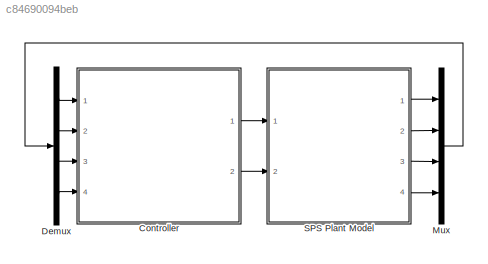
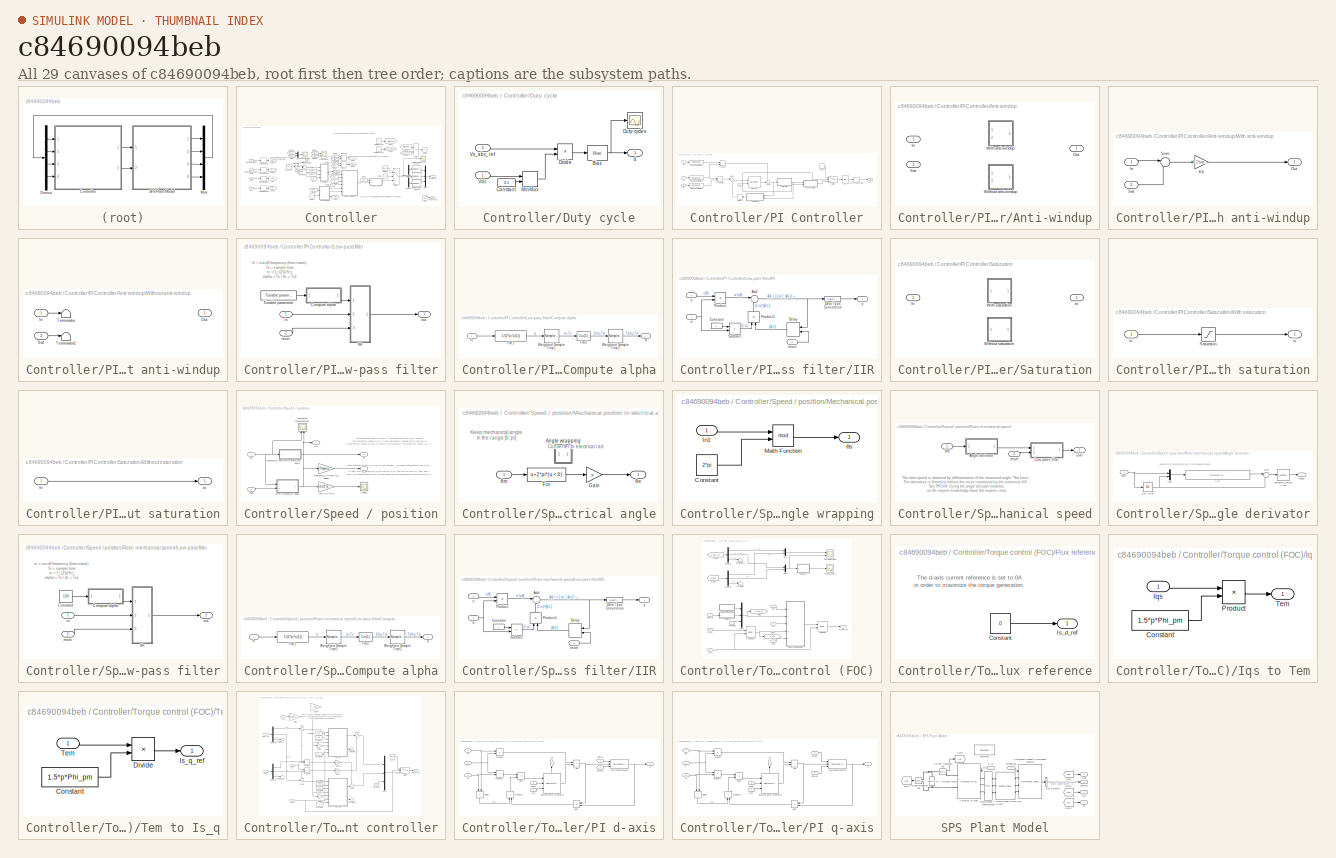
[diagram: thumbnail index - all 29 canvases of the model, root first then tree order]
MODEL slx_c84690094beb
KIND model
CONFIG AbsTol = auto
CONFIG EnableMultiTasking = off
CONFIG FixedStep = ControlPeriod/10
CONFIG InitFcn = Emrax_params;
CONFIG MaxStep = ControlPeriod/10
CONFIG MinStep = auto
CONFIG RelTol = 1e-3
CONFIG SampleTimeConstraint = Unconstrained
CONFIG SolverName = FixedStepDiscrete
CONFIG StartTime = 0.0
CONFIG StopTime = 4
WORKSPACE source: mxarray member
WORKSPACE CTRLPERIOD = 5e-05
WORKSPACE TSAMPLE = 2e-06
WORKSPACE global_CLK_number = 0
WORKSPACE global_INT_number = 1
WORKSPACE global_SVM_instance_id = 0
WORKSPACE global_can_baud_rate = '1000000'
WORKSPACE global_comp_time = 0.2
WORKSPACE global_cycle_delay = 0
WORKSPACE global_ip_addresses: object (value not decoded)
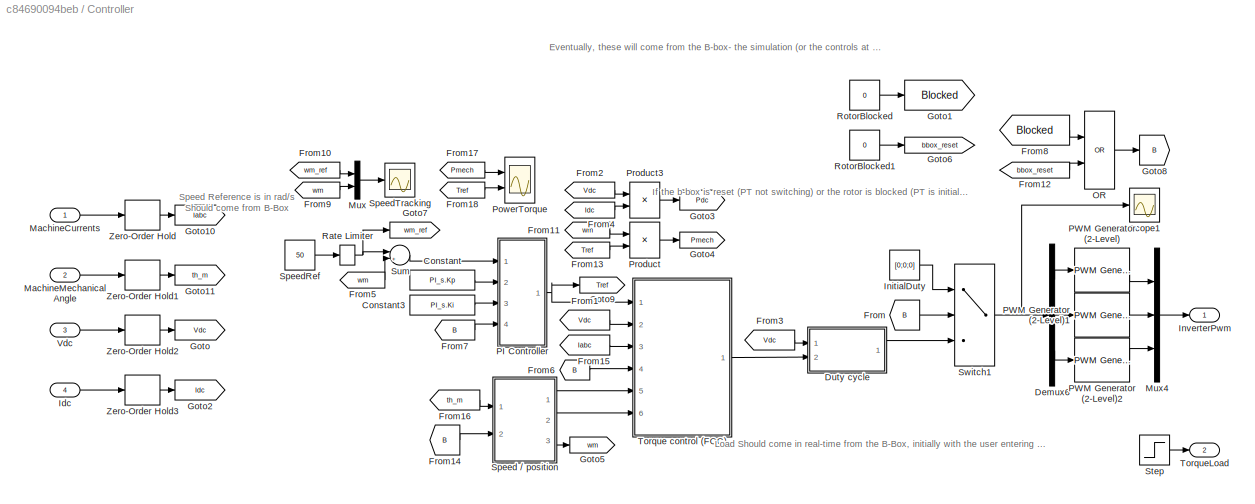
BLOCK [SubSystem] Controller
  Ports = [4, 2]
  RequestExecContextInheritance = off
BLOCK [Constant] Controller/Constant
  SampleTime = ControlPeriod
  Value = PI_s.Kp
BLOCK [Constant] Controller/Constant3
  SampleTime = ControlPeriod
  Value = PI_s.Ki
BLOCK [Demux] Controller/Demux6
  Outputs = 3
  Ports = [1, 3]
BLOCK [SubSystem] Controller/Duty cycle
  Ports = [2, 1]
  RequestExecContextInheritance = off
BLOCK [Bias] Controller/Duty cycle/Bias
  Bias = 0.5
  SaturateOnIntegerOverflow = off
BLOCK [Constant] Controller/Duty cycle/Constant
  OutDataTypeStr = single
  Value = 0.1
BLOCK [Product] Controller/Duty cycle/Divide
  Inputs = */
  Ports = [2, 1]
BLOCK [Scope] Controller/Duty cycle/Duty-cycles
  Floating = off
  NumInputPorts = 1
  Ports = [1]
  ScopeSpecificationString = Simulink.scopes.TimeScopeBlockCfg('CurrentConfiguration', extmgr.ConfigurationSet(extmgr.Configuration('Core','General UI',true),extmgr.Configuration('Core','Source UI',true),extmgr.Configuration('Sources','WiredSimulink',true,'DataLoggingVariableName','ScopeData1'),extmgr.Configuration('Visuals','Time Domain',true,'SerializedDisplays',{struct('MinYLimReal','-0.76547','MaxYLimReal','0.76547','YLab...<+1523ch>
BLOCK [MinMax] Controller/Duty cycle/MinMax
  Function = max
  Inputs = 2
  Ports = [2, 1]
BLOCK [Inport] Controller/Duty cycle/Vdc
BLOCK [Inport] Controller/Duty cycle/Vs_abc_ref
  Port = 2
BLOCK [Outport] Controller/Duty cycle/d
BLOCK [From] Controller/From
  GotoTag = B
BLOCK [From] Controller/From1
  GotoTag = Vdc
BLOCK [From] Controller/From10
  GotoTag = wm_ref
BLOCK [From] Controller/From11
  GotoTag = wm
BLOCK [From] Controller/From12
  GotoTag = bbox_reset
BLOCK [From] Controller/From13
  GotoTag = Tref
BLOCK [From] Controller/From14
  GotoTag = B
BLOCK [From] Controller/From15
  GotoTag = Iabc
BLOCK [From] Controller/From16
  GotoTag = th_m
BLOCK [From] Controller/From17
  GotoTag = Pmech
BLOCK [From] Controller/From18
  GotoTag = Tref
BLOCK [From] Controller/From2
  GotoTag = Vdc
BLOCK [From] Controller/From3
  GotoTag = Vdc
BLOCK [From] Controller/From4
  GotoTag = Idc
BLOCK [From] Controller/From5
  GotoTag = wm
BLOCK [From] Controller/From6
  GotoTag = B
BLOCK [From] Controller/From7
  GotoTag = B
BLOCK [From] Controller/From8
  GotoTag = Blocked
BLOCK [From] Controller/From9
  GotoTag = wm
BLOCK [Goto] Controller/Goto
  GotoTag = Vdc
BLOCK [Goto] Controller/Goto1
  GotoTag = Blocked
BLOCK [Goto] Controller/Goto10
  GotoTag = Iabc
BLOCK [Goto] Controller/Goto11
  GotoTag = th_m
BLOCK [Goto] Controller/Goto2
  GotoTag = Idc
BLOCK [Goto] Controller/Goto3
  GotoTag = Pdc
BLOCK [Goto] Controller/Goto4
  GotoTag = Pmech
BLOCK [Goto] Controller/Goto5
  GotoTag = wm
BLOCK [Goto] Controller/Goto6
  GotoTag = bbox_reset
BLOCK [Goto] Controller/Goto7
  GotoTag = wm_ref
BLOCK [Goto] Controller/Goto8
  GotoTag = B
BLOCK [Goto] Controller/Goto9
  GotoTag = Tref
BLOCK [Inport] Controller/Idc
  Port = 4
BLOCK [Constant] Controller/InitialDuty
  SampleTime = ControlPeriod
  Value = [0;0;0]
BLOCK [Outport] Controller/InverterPwm
BLOCK [Inport] Controller/MachineCurrents
BLOCK [Inport] Controller/MachineMechanicalAngle
  Port = 2
BLOCK [Mux] Controller/Mux
  DisplayOption = bar
  Inputs = 2
  Ports = [2, 1]
BLOCK [Mux] Controller/Mux4
  DisplayOption = bar
  Inputs = 3
  Ports = [3, 1]
BLOCK [Logic] Controller/OR
  AllPortsSameDT = off
  IconShape = distinctive
  Operator = OR
  OutDataTypeStr = boolean
  Ports = [2, 1]
BLOCK [SubSystem] Controller/PI Controller
  Ports = [4, 1]
  RequestExecContextInheritance = off
BLOCK [SubSystem] Controller/PI Controller/Anti-windup
  LabelModeActiveChoice = WITH_ANTI_WINDUP
  Ports = [2, 1]
  RequestExecContextInheritance = off
  Variant = on
  VariantControlMode = label
BLOCK [Inport] Controller/PI Controller/Anti-windup/In
BLOCK [Outport] Controller/PI Controller/Anti-windup/Out
BLOCK [Inport] Controller/PI Controller/Anti-windup/Sat
  Port = 2
BLOCK [SubSystem] Controller/PI Controller/Anti-windup/With anti-windup
  Ports = [2, 1]
  RequestExecContextInheritance = off
  VariantControl = WITH_ANTI_WINDUP
BLOCK [Inport] Controller/PI Controller/Anti-windup/With anti-windup/In
BLOCK [Gain] Controller/PI Controller/Anti-windup/With anti-windup/Kb
  Gain = 0.1*sqrt(PI_s.Kp*PI_s.Ki)
  NameLocation = top
  SaturateOnIntegerOverflow = on
BLOCK [Outport] Controller/PI Controller/Anti-windup/With anti-windup/Out
BLOCK [Inport] Controller/PI Controller/Anti-windup/With anti-windup/Sat
  Port = 2
BLOCK [Sum] Controller/PI Controller/Anti-windup/With anti-windup/Sum
  Inputs = |-+
  Ports = [2, 1]
BLOCK [SubSystem] Controller/PI Controller/Anti-windup/Without anti-windup
  Ports = [2, 1]
  RequestExecContextInheritance = off
  VariantControl = WITHOUT_ANTI_WINDUP
BLOCK [Inport] Controller/PI Controller/Anti-windup/Without anti-windup/In
BLOCK [Outport] Controller/PI Controller/Anti-windup/Without anti-windup/Out
BLOCK [Inport] Controller/PI Controller/Anti-windup/Without anti-windup/Sat
  Port = 2
BLOCK [Terminator] Controller/PI Controller/Anti-windup/Without anti-windup/Terminator
BLOCK [Terminator] Controller/PI Controller/Anti-windup/Without anti-windup/Terminator1
BLOCK [InitialCondition] Controller/PI Controller/IC
  Value = 0
BLOCK [Inport] Controller/PI Controller/In
BLOCK [DiscreteIntegrator] Controller/PI Controller/Integrator
  ExternalReset = level
  ICPrevOutput = DiscIntNeverNeededParam
  ICPrevScaledInput = DiscIntNeverNeededParam
  InitialConditionSetting = Auto
  IntegratorMethod = Integration: Trapezoidal
  Ports = [2, 1]
  SampleTime = SamplingTime
BLOCK [Inport] Controller/PI Controller/Ki
  Port = 3
BLOCK [Inport] Controller/PI Controller/Kp
  Port = 2
BLOCK [SubSystem] Controller/PI Controller/Low-pass filter
  Ports = [2, 1]
  RequestExecContextInheritance = off
BLOCK [SubSystem] Controller/PI Controller/Low-pass filter/Compute alpha
  Ports = [1, 1]
  RequestExecContextInheritance = off
BLOCK [Fcn] Controller/PI Controller/Low-pass filter/Compute alpha/Fcn1
  Expr = 1/(2*pi*u(1))
BLOCK [Fcn] Controller/PI Controller/Low-pass filter/Compute alpha/Fcn2
  Expr = 1/u(1)
BLOCK [SampleTimeMath] Controller/PI Controller/Low-pass filter/Compute alpha/Weighted Sample Time1
BLOCK [SampleTimeMath] Controller/PI Controller/Low-pass filter/Compute alpha/Weighted Sample Time2
  TsampMathOp = *
BLOCK [Inport] Controller/PI Controller/Low-pass filter/Compute alpha/fc
BLOCK [Outport] Controller/PI Controller/Low-pass filter/Compute alpha/α
BLOCK [SubSystem] Controller/PI Controller/Low-pass filter/IIR
  Ports = [3, 1]
  RequestExecContextInheritance = off
BLOCK [Sum] Controller/PI Controller/Low-pass filter/IIR/Add
  AccumDataTypeStr = Inherit: Same as first input
  Inputs = |++
  NameLocation = top
  Ports = [2, 1]
BLOCK [Constant] Controller/PI Controller/Low-pass filter/IIR/Constant
  OutDataTypeStr = Inherit: Inherit via back propagation
BLOCK [DataTypeConversion] Controller/PI Controller/Low-pass filter/IIR/Data Type Conversion
  OutDataTypeStr = single
  RndMeth = Floor
  SaturateOnIntegerOverflow = off
BLOCK [Delay] Controller/PI Controller/Low-pass filter/IIR/Delay
  DelayLength = 1
  ExternalReset = Level hold
  InputPortMap = u0,r5
  NameLocation = top
  Ports = [2, 1]
BLOCK [Product] Controller/PI Controller/Low-pass filter/IIR/Product
  Ports = [2, 1]
BLOCK [Product] Controller/PI Controller/Low-pass filter/IIR/Product1
  NameLocation = right
  Ports = [2, 1]
BLOCK [Sum] Controller/PI Controller/Low-pass filter/IIR/Subtract
  IconShape = rectangular
  Inputs = +-
  Ports = [2, 1]
BLOCK [Inport] Controller/PI Controller/Low-pass filter/IIR/reset
  Port = 3
BLOCK [Inport] Controller/PI Controller/Low-pass filter/IIR/u
  NameLocation = top
  Port = 2
BLOCK [Outport] Controller/PI Controller/Low-pass filter/IIR/y
  NameLocation = top
BLOCK [Inport] Controller/PI Controller/Low-pass filter/IIR/α
  NameLocation = top
BLOCK [Reference] Controller/PI Controller/Low-pass filter/Tunable parameter  REF=BoomBox/Tunable parameter
  Ports = [0, 1]
  SourceBlock = BoomBox/Tunable parameter
  SourceProductName = imperix blockset
  SourceType = Tunable parameter
BLOCK [Inport] Controller/PI Controller/Low-pass filter/in
BLOCK [Outport] Controller/PI Controller/Low-pass filter/out
BLOCK [Inport] Controller/PI Controller/Low-pass filter/reset
  Port = 2
BLOCK [Memory] Controller/PI Controller/Memory
BLOCK [Outport] Controller/PI Controller/Out
BLOCK [Product] Controller/PI Controller/Product
  Ports = [2, 1]
BLOCK [Product] Controller/PI Controller/Product1
  Ports = [2, 1]
BLOCK [SubSystem] Controller/PI Controller/Saturation
  LabelModeActiveChoice = WITH_SATURATION
  Ports = [1, 1]
  RequestExecContextInheritance = off
  Variant = on
  VariantControlMode = label
BLOCK [Inport] Controller/PI Controller/Saturation/In
BLOCK [SubSystem] Controller/PI Controller/Saturation/With saturation
  Ports = [1, 1]
  RequestExecContextInheritance = off
  VariantControl = WITH_SATURATION
BLOCK [Inport] Controller/PI Controller/Saturation/With saturation/In
BLOCK [Saturate] Controller/PI Controller/Saturation/With saturation/Saturation
  LinearizeAsGain = off
  LowerLimit = -100
  UpperLimit = 100
BLOCK [Outport] Controller/PI Controller/Saturation/With saturation/in
BLOCK [SubSystem] Controller/PI Controller/Saturation/Without saturation
  Ports = [1, 1]
  RequestExecContextInheritance = off
  VariantControl = WITHOUT_SATURATION
BLOCK [Inport] Controller/PI Controller/Saturation/Without saturation/In
BLOCK [Outport] Controller/PI Controller/Saturation/Without saturation/in
BLOCK [Outport] Controller/PI Controller/Saturation/in
BLOCK [SignalSpecification] Controller/PI Controller/Signal Specification
  SampleTime = SamplingTime
BLOCK [SignalSpecification] Controller/PI Controller/Signal Specification1
  SampleTime = SamplingTime
BLOCK [SignalSpecification] Controller/PI Controller/Signal Specification2
  SampleTime = SamplingTime
BLOCK [Sum] Controller/PI Controller/Sum4
  Inputs = |++
  Ports = [2, 1]
BLOCK [Sum] Controller/PI Controller/Sum5
  Inputs = ++|
  Ports = [2, 1]
BLOCK [Switch] Controller/PI Controller/Switch
  Criteria = u2 > Threshold
  InputSameDT = off
  SaturateOnIntegerOverflow = off
BLOCK [Constant] Controller/PI Controller/Zero
  OutDataTypeStr = Inherit: Inherit via back propagation
  Value = 0
BLOCK [ZeroOrderHold] Controller/PI Controller/Zero-Order Hold
  SampleTime = CTRLPERIOD
BLOCK [Inport] Controller/PI Controller/rst
  Port = 4
BLOCK [Reference] Controller/PWM Generator (2-Level)  REF=spsPWMGenerator2LevelLib/PWM Generator
(2-Level)
  Ports = [1, 1]
  SourceBlock = spsPWMGenerator2LevelLib/PWM Generator\n(2-Level)
  SourceProductBaseCode = PS
  SourceType = PWM Generator (2-Level)
BLOCK [Reference] Controller/PWM Generator (2-Level)1  REF=spsPWMGenerator2LevelLib/PWM Generator
(2-Level)
  Ports = [1, 1]
  SourceBlock = spsPWMGenerator2LevelLib/PWM Generator\n(2-Level)
  SourceProductBaseCode = PS
  SourceType = PWM Generator (2-Level)
BLOCK [Reference] Controller/PWM Generator (2-Level)2  REF=spsPWMGenerator2LevelLib/PWM Generator
(2-Level)
  Ports = [1, 1]
  SourceBlock = spsPWMGenerator2LevelLib/PWM Generator\n(2-Level)
  SourceProductBaseCode = PS
  SourceType = PWM Generator (2-Level)
BLOCK [Scope] Controller/PowerTorque
  Floating = off
  NumInputPorts = 2
  Ports = [2]
  ScopeSpecificationString = Simulink.scopes.TimeScopeBlockCfg('CurrentConfiguration', extmgr.ConfigurationSet(extmgr.Configuration('Core','General UI',true),extmgr.Configuration('Core','Source UI',true),extmgr.Configuration('Sources','WiredSimulink',true,'DataLoggingVariableName','ScopeData2'),extmgr.Configuration('Visuals','Time Domain',true,'SerializedDisplays',{struct('MinYLimReal','-92.34118','MaxYLimReal','576.14314','Y...<+2194ch>
BLOCK [Product] Controller/Product
  Ports = [2, 1]
BLOCK [Product] Controller/Product3
  Ports = [2, 1]
BLOCK [RateLimiter] Controller/Rate Limiter
  FallingSlewLimit = -25
  LinearizeAsGain = off
  RisingSlewLimit = 100
  SampleTimeMode = inherited
BLOCK [Constant] Controller/RotorBlocked
  SampleTime = ControlPeriod
  Value = 0
BLOCK [Constant] Controller/RotorBlocked1
  SampleTime = ControlPeriod
  Value = 0
BLOCK [Scope] Controller/Scope1
  Floating = off
  NumInputPorts = 1
  Ports = [1]
  ScopeSpecificationString = Simulink.scopes.TimeScopeBlockCfg('CurrentConfiguration', extmgr.ConfigurationSet(extmgr.Configuration('Core','General UI',true),extmgr.Configuration('Core','Source UI',true),extmgr.Configuration('Sources','WiredSimulink',true,'DataLoggingVariableName','ScopeData1'),extmgr.Configuration('Visuals','Time Domain',true,'SerializedDisplays',{struct('MinYLimReal','0.4','MaxYLimReal','0.6','YLabelReal','...<+1521ch>
BLOCK [SubSystem] Controller/Speed // position
  Ports = [2, 3]
  RequestExecContextInheritance = off
BLOCK [Outport] Controller/Speed // position/ ωm
  Port = 3
BLOCK [Outport] Controller/Speed // position/ ωs
BLOCK [Scope] Controller/Speed // position/Mechanical measurements
  Floating = off
  NameLocation = right
  NumInputPorts = 2
  Ports = [2]
  ScopeSpecificationString = Simulink.scopes.TimeScopeBlockCfg('CurrentConfiguration', extmgr.ConfigurationSet(extmgr.Configuration('Core','General UI',true),extmgr.Configuration('Core','Source UI',true),extmgr.Configuration('Sources','WiredSimulink',true,'DataLoggingVariableName','ScopeData2'),extmgr.Configuration('Visuals','Time Domain',true,'SerializedDisplays',{struct('MinYLimReal','-3.92656','MaxYLimReal','3.92395','YLab...<+2062ch>
BLOCK [SubSystem] Controller/Speed // position/Mechanical position to electrical angle
  Ports = [1, 1]
  RequestExecContextInheritance = off
BLOCK [SubSystem] Controller/Speed // position/Mechanical position to electrical angle/Angle wrapping
  Commented = on
  NameLocation = top
  Ports = [1, 1]
  RequestExecContextInheritance = off
  ShowPortLabels = none
BLOCK [Constant] Controller/Speed // position/Mechanical position to electrical angle/Angle wrapping/Constant
  OutDataTypeStr = single
  Value = 2*pi
BLOCK [Inport] Controller/Speed // position/Mechanical position to electrical angle/Angle wrapping/In1
BLOCK [Math] Controller/Speed // position/Mechanical position to electrical angle/Angle wrapping/Math Function
  Operator = mod
  Ports = [2, 1]
  SignedPower = on
BLOCK [Outport] Controller/Speed // position/Mechanical position to electrical angle/Angle wrapping/θs
BLOCK [Fcn] Controller/Speed // position/Mechanical position to electrical angle/Fcn
  Expr = u+2*pi*(u < 0)
BLOCK [Gain] Controller/Speed // position/Mechanical position to electrical angle/Gain
  Gain = p
BLOCK [Outport] Controller/Speed // position/Mechanical position to electrical angle/θe
BLOCK [Inport] Controller/Speed // position/Mechanical position to electrical angle/θm
BLOCK [Gain] Controller/Speed // position/Mechanical to electrical speed
  Gain = Pmsm.p
BLOCK [SubSystem] Controller/Speed // position/Rotor mechanical speed
  Ports = [2, 1]
  RequestExecContextInheritance = off
BLOCK [SubSystem] Controller/Speed // position/Rotor mechanical speed/Angle derivator
  Ports = [1, 1]
  RequestExecContextInheritance = off
BLOCK [Fcn] Controller/Speed // position/Rotor mechanical speed/Angle derivator/Fcn
  Expr = u(1)+2*pi*((u(1)-u(2))<-pi)-2*pi*((u(1)-u(2)>pi))
BLOCK [Mux] Controller/Speed // position/Rotor mechanical speed/Angle derivator/Mux
  DisplayOption = bar
  Inputs = 2
  Ports = [2, 1]
BLOCK [Sum] Controller/Speed // position/Rotor mechanical speed/Angle derivator/Sum
  Inputs = |+-
  Ports = [2, 1]
BLOCK [UnitDelay] Controller/Speed // position/Rotor mechanical speed/Angle derivator/Unit Delay
  HasFrameUpgradeWarning = on
  SampleTime = CTRLPERIOD(1)
BLOCK [SampleTimeMath] Controller/Speed // position/Rotor mechanical speed/Angle derivator/Weighted Sample Time
  TsampMathOp = /
BLOCK [Inport] Controller/Speed // position/Rotor mechanical speed/Angle derivator/angle
BLOCK [Outport] Controller/Speed // position/Rotor mechanical speed/Angle derivator/speed
BLOCK [SubSystem] Controller/Speed // position/Rotor mechanical speed/Low-pass filter
  Ports = [2, 1]
  RequestExecContextInheritance = off
BLOCK [SubSystem] Controller/Speed // position/Rotor mechanical speed/Low-pass filter/Compute alpha
  Ports = [1, 1]
  RequestExecContextInheritance = off
BLOCK [Fcn] Controller/Speed // position/Rotor mechanical speed/Low-pass filter/Compute alpha/Fcn1
  Expr = 1/(2*pi*u(1))
BLOCK [Fcn] Controller/Speed // position/Rotor mechanical speed/Low-pass filter/Compute alpha/Fcn2
  Expr = 1/u(1)
BLOCK [SampleTimeMath] Controller/Speed // position/Rotor mechanical speed/Low-pass filter/Compute alpha/Weighted Sample Time1
BLOCK [SampleTimeMath] Controller/Speed // position/Rotor mechanical speed/Low-pass filter/Compute alpha/Weighted Sample Time2
  TsampMathOp = *
BLOCK [Inport] Controller/Speed // position/Rotor mechanical speed/Low-pass filter/Compute alpha/fc
BLOCK [Outport] Controller/Speed // position/Rotor mechanical speed/Low-pass filter/Compute alpha/α
BLOCK [Constant] Controller/Speed // position/Rotor mechanical speed/Low-pass filter/Constant
  Value = 100
BLOCK [SubSystem] Controller/Speed // position/Rotor mechanical speed/Low-pass filter/IIR
  Ports = [3, 1]
  RequestExecContextInheritance = off
BLOCK [Sum] Controller/Speed // position/Rotor mechanical speed/Low-pass filter/IIR/Add
  AccumDataTypeStr = Inherit: Same as first input
  Inputs = |++
  NameLocation = top
  Ports = [2, 1]
BLOCK [Constant] Controller/Speed // position/Rotor mechanical speed/Low-pass filter/IIR/Constant
  OutDataTypeStr = Inherit: Inherit via back propagation
BLOCK [DataTypeConversion] Controller/Speed // position/Rotor mechanical speed/Low-pass filter/IIR/Data Type Conversion
  Commented = through
  OutDataTypeStr = single
  RndMeth = Floor
  SaturateOnIntegerOverflow = off
BLOCK [Delay] Controller/Speed // position/Rotor mechanical speed/Low-pass filter/IIR/Delay
  DelayLength = 1
  ExternalReset = Level hold
  InputPortMap = u0,r5
  NameLocation = top
  Ports = [2, 1]
BLOCK [Product] Controller/Speed // position/Rotor mechanical speed/Low-pass filter/IIR/Product
  Ports = [2, 1]
BLOCK [Product] Controller/Speed // position/Rotor mechanical speed/Low-pass filter/IIR/Product1
  NameLocation = right
  Ports = [2, 1]
BLOCK [Sum] Controller/Speed // position/Rotor mechanical speed/Low-pass filter/IIR/Subtract
  IconShape = rectangular
  Inputs = +-
  Ports = [2, 1]
BLOCK [Inport] Controller/Speed // position/Rotor mechanical speed/Low-pass filter/IIR/reset
  Port = 3
BLOCK [Inport] Controller/Speed // position/Rotor mechanical speed/Low-pass filter/IIR/u
  NameLocation = top
  Port = 2
BLOCK [Outport] Controller/Speed // position/Rotor mechanical speed/Low-pass filter/IIR/y
  NameLocation = top
BLOCK [Inport] Controller/Speed // position/Rotor mechanical speed/Low-pass filter/IIR/α
  NameLocation = top
BLOCK [Inport] Controller/Speed // position/Rotor mechanical speed/Low-pass filter/in
BLOCK [Outport] Controller/Speed // position/Rotor mechanical speed/Low-pass filter/out
BLOCK [Inport] Controller/Speed // position/Rotor mechanical speed/Low-pass filter/reset
  Port = 2
BLOCK [Inport] Controller/Speed // position/Rotor mechanical speed/reset
  Port = 2
BLOCK [Inport] Controller/Speed // position/Rotor mechanical speed/θm
BLOCK [Outport] Controller/Speed // position/Rotor mechanical speed/ωm
BLOCK [Scope] Controller/Speed // position/Speed
  Floating = off
  NumInputPorts = 1
  Ports = [1]
  ScopeSpecificationString = Simulink.scopes.TimeScopeBlockCfg('CurrentConfiguration', extmgr.ConfigurationSet(extmgr.Configuration('Core','General UI',true),extmgr.Configuration('Core','Source UI',true),extmgr.Configuration('Sources','WiredSimulink',true,'DataLoggingVariableName','ScopeData3'),extmgr.Configuration('Visuals','Time Domain',true,'SerializedDisplays',{struct('MinYLimReal','-1454.93441','MaxYLimReal','161.65938',...<+1502ch>
BLOCK [Gain] Controller/Speed // position/rad //s to RPM
  Gain = 60/(2*pi)
BLOCK [Inport] Controller/Speed // position/reset
  Port = 2
BLOCK [Inport] Controller/Speed // position/θm
BLOCK [Outport] Controller/Speed // position/θs
  Port = 2
BLOCK [Constant] Controller/SpeedRef
  SampleTime = ControlPeriod
  Value = 50
BLOCK [Scope] Controller/SpeedTracking
  Floating = off
  NumInputPorts = 1
  Ports = [1]
  ScopeSpecificationString = Simulink.scopes.TimeScopeBlockCfg('CurrentConfiguration', extmgr.ConfigurationSet(extmgr.Configuration('Core','General UI',true),extmgr.Configuration('Core','Source UI',true),extmgr.Configuration('Sources','WiredSimulink',true,'DataLoggingVariableName','ScopeData1'),extmgr.Configuration('Visuals','Time Domain',true,'SerializedDisplays',{struct('MinYLimReal','-23.13834','MaxYLimReal','65.9739','YLa...<+1557ch>
BLOCK [Step] Controller/Step
  After = 10
  SampleTime = ControlPeriod
BLOCK [Sum] Controller/Sum
  Inputs = |+-
  Ports = [2, 1]
BLOCK [Switch] Controller/Switch1
  Criteria = u2 > Threshold
  InputSameDT = off
  SaturateOnIntegerOverflow = off
BLOCK [SubSystem] Controller/Torque control (FOC)
  Ports = [6, 1]
  RequestExecContextInheritance = off
BLOCK [Constant] Controller/Torque control (FOC)/Constant6
  OutDataTypeStr = Inherit: Inherit via back propagation
  Value = 0
BLOCK [Scope] Controller/Torque control (FOC)/Current tracking
  Floating = off
  NumInputPorts = 2
  Ports = [2]
  ScopeSpecificationString = Simulink.scopes.TimeScopeBlockCfg('CurrentConfiguration', extmgr.ConfigurationSet(extmgr.Configuration('Core','General UI',true),extmgr.Configuration('Core','Source UI',true),extmgr.Configuration('Sources','WiredSimulink',true,'DataLoggingVariableName','ScopeData4'),extmgr.Configuration('Visuals','Time Domain',true,'SerializedDisplays',{struct('MinYLimReal','-2.85602','MaxYLimReal','3.08304','YLab...<+2156ch>
BLOCK [Demux] Controller/Torque control (FOC)/Demux1
  Outputs = 3
  Ports = [1, 3]
BLOCK [Demux] Controller/Torque control (FOC)/Demux2
  Outputs = 3
  Ports = [1, 3]
BLOCK [SubSystem] Controller/Torque control (FOC)/Flux reference
  NameLocation = top
  Ports = [0, 1]
  RequestExecContextInheritance = off
BLOCK [Constant] Controller/Torque control (FOC)/Flux reference/Constant
  OutDataTypeStr = Inherit: Inherit via back propagation
  Value = 0
BLOCK [Outport] Controller/Torque control (FOC)/Flux reference/Is_d_ref
BLOCK [From] Controller/Torque control (FOC)/From2
  GotoTag = Is_dq0_ref
BLOCK [From] Controller/Torque control (FOC)/From3
  GotoTag = Is_dq0
BLOCK [Goto] Controller/Torque control (FOC)/Goto1
  GotoTag = Is_dq0_ref
BLOCK [Goto] Controller/Torque control (FOC)/Goto2
  GotoTag = Is_dq0
BLOCK [SubSystem] Controller/Torque control (FOC)/Iqs to Tem
  NameLocation = top
  Ports = [1, 1]
  RequestExecContextInheritance = off
BLOCK [Constant] Controller/Torque control (FOC)/Iqs to Tem/Constant
  OutDataTypeStr = single
  Value = 1.5*p*Phi_pm
BLOCK [Inport] Controller/Torque control (FOC)/Iqs to Tem/Iqs
BLOCK [Product] Controller/Torque control (FOC)/Iqs to Tem/Product
  Ports = [2, 1]
BLOCK [Outport] Controller/Torque control (FOC)/Iqs to Tem/Tem
BLOCK [Inport] Controller/Torque control (FOC)/Is_abc
  Port = 3
BLOCK [Mux] Controller/Torque control (FOC)/Mux3
  DisplayOption = bar
  Inputs = 2
  Ports = [2, 1]
BLOCK [Mux] Controller/Torque control (FOC)/Mux4
  DisplayOption = bar
  Inputs = 2
  Ports = [2, 1]
BLOCK [Mux] Controller/Torque control (FOC)/Mux9
  DisplayOption = bar
  Inputs = [1 1 1]
  Ports = [3, 1]
BLOCK [SubSystem] Controller/Torque control (FOC)/Tem to Is_q
  Ports = [1, 1]
  RequestExecContextInheritance = off
BLOCK [Constant] Controller/Torque control (FOC)/Tem to Is_q/Constant
  OutDataTypeStr = Inherit: Inherit via back propagation
  Value = 1.5*p*Phi_pm
BLOCK [Product] Controller/Torque control (FOC)/Tem to Is_q/Divide
  Inputs = */
  Ports = [2, 1]
BLOCK [Outport] Controller/Torque control (FOC)/Tem to Is_q/Is_q_ref
BLOCK [Inport] Controller/Torque control (FOC)/Tem to Is_q/Tem
BLOCK [Inport] Controller/Torque control (FOC)/Tem_ref
BLOCK [Terminator] Controller/Torque control (FOC)/Terminator
BLOCK [Terminator] Controller/Torque control (FOC)/Terminator1
BLOCK [Scope] Controller/Torque control (FOC)/Torque control
  Floating = off
  NumInputPorts = 1
  Ports = [1]
  ScopeSpecificationString = Simulink.scopes.TimeScopeBlockCfg('CurrentConfiguration', extmgr.ConfigurationSet(extmgr.Configuration('Core','General UI',true),extmgr.Configuration('Core','Source UI',true),extmgr.Configuration('Sources','WiredSimulink',true,'DataLoggingVariableName','ScopeData5'),extmgr.Configuration('Visuals','Time Domain',true,'SerializedDisplays',{struct('MinYLimReal','-8.38904','MaxYLimReal','26.12179','YLa...<+1598ch>
BLOCK [Inport] Controller/Torque control (FOC)/Vdc
  Port = 2
BLOCK [Outport] Controller/Torque control (FOC)/Vs_abc_ref
BLOCK [Reference] Controller/Torque control (FOC)/abc to dq0  REF=spsabctodq0Lib/abc to dq0
  Ports = [2, 1]
  SourceBlock = spsabctodq0Lib/abc to dq0
  SourceProductBaseCode = PS
  SourceType = abc to dq0 Transformation
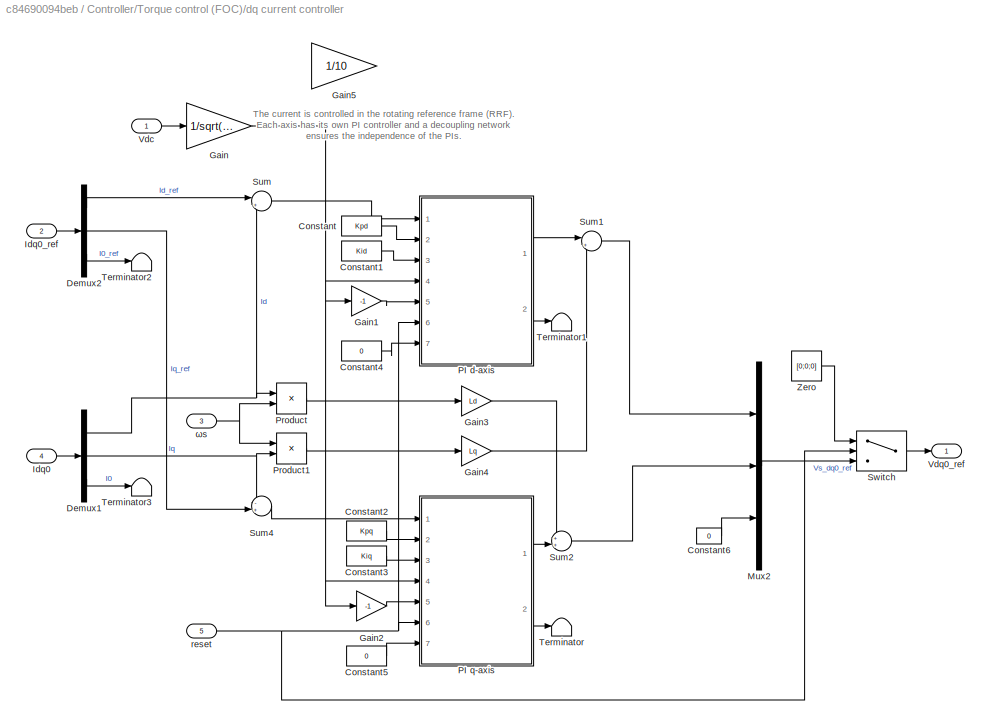
BLOCK [SubSystem] Controller/Torque control (FOC)/dq current controller
  NameLocation = top
  Ports = [5, 1]
  RequestExecContextInheritance = off
BLOCK [Constant] Controller/Torque control (FOC)/dq current controller/Constant
  OutDataTypeStr = Inherit: Inherit via back propagation
  Value = Kpd
BLOCK [Constant] Controller/Torque control (FOC)/dq current controller/Constant1
  OutDataTypeStr = Inherit: Inherit via back propagation
  Value = Kid
BLOCK [Constant] Controller/Torque control (FOC)/dq current controller/Constant2
  OutDataTypeStr = Inherit: Inherit via back propagation
  Value = Kpq
BLOCK [Constant] Controller/Torque control (FOC)/dq current controller/Constant3
  OutDataTypeStr = Inherit: Inherit via back propagation
  Value = Kiq
BLOCK [Constant] Controller/Torque control (FOC)/dq current controller/Constant4
  OutDataTypeStr = Inherit: Inherit via back propagation
  Value = 0
BLOCK [Constant] Controller/Torque control (FOC)/dq current controller/Constant5
  OutDataTypeStr = Inherit: Inherit via back propagation
  Value = 0
BLOCK [Constant] Controller/Torque control (FOC)/dq current controller/Constant6
  OutDataTypeStr = Inherit: Inherit via back propagation
  Value = 0
BLOCK [Demux] Controller/Torque control (FOC)/dq current controller/Demux1
  Outputs = 3
  Ports = [1, 3]
BLOCK [Demux] Controller/Torque control (FOC)/dq current controller/Demux2
  Outputs = 3
  Ports = [1, 3]
BLOCK [Gain] Controller/Torque control (FOC)/dq current controller/Gain
  Gain = 1/sqrt(2)
BLOCK [Gain] Controller/Torque control (FOC)/dq current controller/Gain1
  Gain = -1
BLOCK [Gain] Controller/Torque control (FOC)/dq current controller/Gain2
  Gain = -1
BLOCK [Gain] Controller/Torque control (FOC)/dq current controller/Gain3
  Gain = Ld
BLOCK [Gain] Controller/Torque control (FOC)/dq current controller/Gain4
  Gain = Lq
BLOCK [Gain] Controller/Torque control (FOC)/dq current controller/Gain5
  Commented = on
  Gain = 1/10
BLOCK [Inport] Controller/Torque control (FOC)/dq current controller/Idq0
  Port = 4
BLOCK [Inport] Controller/Torque control (FOC)/dq current controller/Idq0_ref
  Port = 2
BLOCK [Mux] Controller/Torque control (FOC)/dq current controller/Mux2
  DisplayOption = bar
  Inputs = 3
  Ports = [3, 1]
BLOCK [SubSystem] Controller/Torque control (FOC)/dq current controller/PI d-axis
  Ports = [7, 2]
  RequestExecContextInheritance = off
BLOCK [Sum] Controller/Torque control (FOC)/dq current controller/PI d-axis/Add
  IconShape = rectangular
  Ports = [2, 1]
BLOCK [Sum] Controller/Torque control (FOC)/dq current controller/PI d-axis/Add1
  IconShape = rectangular
  Inputs = +-
  Ports = [2, 1]
BLOCK [Sum] Controller/Torque control (FOC)/dq current controller/PI d-axis/Add2
  IconShape = rectangular
  Inputs = +-
  Ports = [2, 1]
BLOCK [DiscreteIntegrator] Controller/Torque control (FOC)/dq current controller/PI d-axis/Discrete-Time Integrator
  ExternalReset = level
  ICPrevOutput = DiscIntNeverNeededParam
  ICPrevScaledInput = DiscIntNeverNeededParam
  InitialConditionSetting = Auto
  InitialConditionSource = external
  Ports = [3, 1, 0, 0, 1]
  SampleTime = -1
  ShowStatePort = on
BLOCK [Product] Controller/Torque control (FOC)/dq current controller/PI d-axis/Divide
  Inputs = */
  NameLocation = right
  Ports = [2, 1]
BLOCK [Outport] Controller/Torque control (FOC)/dq current controller/PI d-axis/Int
  NameLocation = right
  Port = 2
BLOCK [Inport] Controller/Torque control (FOC)/dq current controller/PI d-axis/Int0
  Port = 7
BLOCK [Inport] Controller/Torque control (FOC)/dq current controller/PI d-axis/Ki
  Port = 3
BLOCK [Inport] Controller/Torque control (FOC)/dq current controller/PI d-axis/Kp
  Port = 2
BLOCK [Product] Controller/Torque control (FOC)/dq current controller/PI d-axis/Product
  Ports = [2, 1]
BLOCK [Product] Controller/Torque control (FOC)/dq current controller/PI d-axis/Product1
  Ports = [2, 1]
BLOCK [Product] Controller/Torque control (FOC)/dq current controller/PI d-axis/Product2
  NameLocation = right
  Ports = [2, 1]
BLOCK [Inport] Controller/Torque control (FOC)/dq current controller/PI d-axis/Reset
  Port = 6
BLOCK [Inport] Controller/Torque control (FOC)/dq current controller/PI d-axis/SatLow
  Port = 5
BLOCK [Inport] Controller/Torque control (FOC)/dq current controller/PI d-axis/SatUp
  NameLocation = top
  Port = 4
BLOCK [Reference] Controller/Torque control (FOC)/dq current controller/PI d-axis/Saturation Dynamic  REF=simulink/Discontinuities/Saturation
Dynamic
  Ports = [3, 1]
  SourceBlock = simulink/Discontinuities/Saturation\nDynamic
  SourceProductBaseCode = SL
  SourceType = Saturation Dynamic
BLOCK [Inport] Controller/Torque control (FOC)/dq current controller/PI d-axis/e
BLOCK [Outport] Controller/Torque control (FOC)/dq current controller/PI d-axis/u
BLOCK [SubSystem] Controller/Torque control (FOC)/dq current controller/PI q-axis
  Ports = [7, 2]
  RequestExecContextInheritance = off
BLOCK [Sum] Controller/Torque control (FOC)/dq current controller/PI q-axis/Add
  IconShape = rectangular
  Ports = [2, 1]
BLOCK [Sum] Controller/Torque control (FOC)/dq current controller/PI q-axis/Add1
  IconShape = rectangular
  Inputs = +-
  Ports = [2, 1]
BLOCK [Sum] Controller/Torque control (FOC)/dq current controller/PI q-axis/Add2
  IconShape = rectangular
  Inputs = +-
  Ports = [2, 1]
BLOCK [DiscreteIntegrator] Controller/Torque control (FOC)/dq current controller/PI q-axis/Discrete-Time Integrator
  ExternalReset = level
  ICPrevOutput = DiscIntNeverNeededParam
  ICPrevScaledInput = DiscIntNeverNeededParam
  InitialConditionSetting = Auto
  InitialConditionSource = external
  Ports = [3, 1, 0, 0, 1]
  SampleTime = -1
  ShowStatePort = on
BLOCK [Product] Controller/Torque control (FOC)/dq current controller/PI q-axis/Divide
  Inputs = */
  NameLocation = right
  Ports = [2, 1]
BLOCK [Outport] Controller/Torque control (FOC)/dq current controller/PI q-axis/Int
  NameLocation = right
  Port = 2
BLOCK [Inport] Controller/Torque control (FOC)/dq current controller/PI q-axis/Int0
  Port = 7
BLOCK [Inport] Controller/Torque control (FOC)/dq current controller/PI q-axis/Ki
  Port = 3
BLOCK [Inport] Controller/Torque control (FOC)/dq current controller/PI q-axis/Kp
  Port = 2
BLOCK [Product] Controller/Torque control (FOC)/dq current controller/PI q-axis/Product
  Ports = [2, 1]
BLOCK [Product] Controller/Torque control (FOC)/dq current controller/PI q-axis/Product1
  Ports = [2, 1]
BLOCK [Product] Controller/Torque control (FOC)/dq current controller/PI q-axis/Product2
  NameLocation = right
  Ports = [2, 1]
BLOCK [Inport] Controller/Torque control (FOC)/dq current controller/PI q-axis/Reset
  Port = 6
BLOCK [Inport] Controller/Torque control (FOC)/dq current controller/PI q-axis/SatLow
  Port = 5
BLOCK [Inport] Controller/Torque control (FOC)/dq current controller/PI q-axis/SatUp
  Port = 4
BLOCK [Reference] Controller/Torque control (FOC)/dq current controller/PI q-axis/Saturation Dynamic  REF=simulink/Discontinuities/Saturation
Dynamic
  Ports = [3, 1]
  SourceBlock = simulink/Discontinuities/Saturation\nDynamic
  SourceProductBaseCode = SL
  SourceType = Saturation Dynamic
BLOCK [Inport] Controller/Torque control (FOC)/dq current controller/PI q-axis/e
BLOCK [Outport] Controller/Torque control (FOC)/dq current controller/PI q-axis/u
BLOCK [Product] Controller/Torque control (FOC)/dq current controller/Product
  Ports = [2, 1]
BLOCK [Product] Controller/Torque control (FOC)/dq current controller/Product1
  Ports = [2, 1]
BLOCK [Sum] Controller/Torque control (FOC)/dq current controller/Sum
  Inputs = |+-
  Ports = [2, 1]
BLOCK [Sum] Controller/Torque control (FOC)/dq current controller/Sum1
  Inputs = |+-
  Ports = [2, 1]
BLOCK [Sum] Controller/Torque control (FOC)/dq current controller/Sum2
  Inputs = ++|
  Ports = [2, 1]
BLOCK [Sum] Controller/Torque control (FOC)/dq current controller/Sum4
  Inputs = -+|
  Ports = [2, 1]
BLOCK [Switch] Controller/Torque control (FOC)/dq current controller/Switch
  Criteria = u2 > Threshold
  InputSameDT = off
  OutDataTypeStr = Inherit: Inherit via back propagation
  SaturateOnIntegerOverflow = off
BLOCK [Terminator] Controller/Torque control (FOC)/dq current controller/Terminator
BLOCK [Terminator] Controller/Torque control (FOC)/dq current controller/Terminator1
BLOCK [Terminator] Controller/Torque control (FOC)/dq current controller/Terminator2
BLOCK [Terminator] Controller/Torque control (FOC)/dq current controller/Terminator3
BLOCK [Inport] Controller/Torque control (FOC)/dq current controller/Vdc
BLOCK [Outport] Controller/Torque control (FOC)/dq current controller/Vdq0_ref
BLOCK [Constant] Controller/Torque control (FOC)/dq current controller/Zero
  OutDataTypeStr = Inherit: Inherit via back propagation
  Value = [0;0;0]
BLOCK [Inport] Controller/Torque control (FOC)/dq current controller/reset
  Port = 5
BLOCK [Inport] Controller/Torque control (FOC)/dq current controller/ωs
  Port = 3
BLOCK [Reference] Controller/Torque control (FOC)/dq0 to abc  REF=spsdq0toabcLib/dq0 to abc
  Ports = [2, 1]
  SourceBlock = spsdq0toabcLib/dq0 to abc
  SourceProductBaseCode = PS
  SourceType = dq0 to abc Transformation
BLOCK [Inport] Controller/Torque control (FOC)/reset
  Port = 4
BLOCK [Inport] Controller/Torque control (FOC)/θs
  Port = 6
BLOCK [Inport] Controller/Torque control (FOC)/ωs
  Port = 5
BLOCK [Outport] Controller/TorqueLoad
  Port = 2
BLOCK [Inport] Controller/Vdc
  Port = 3
BLOCK [ZeroOrderHold] Controller/Zero-Order Hold
  SampleTime = ControlPeriod
BLOCK [ZeroOrderHold] Controller/Zero-Order Hold1
  SampleTime = ControlPeriod
BLOCK [ZeroOrderHold] Controller/Zero-Order Hold2
  SampleTime = ControlPeriod
BLOCK [ZeroOrderHold] Controller/Zero-Order Hold3
  SampleTime = ControlPeriod
BLOCK [Demux] Demux
  Outputs = [3 1 1 1]
  Ports = [1, 4]
BLOCK [Mux] Mux
  DisplayOption = bar
  Inputs = [3 1 1 1]
  Ports = [4, 1]
BLOCK [SubSystem] SPS Plant Model
  Ports = [2, 4]
  RequestExecContextInheritance = off
BLOCK [BusSelector] SPS Plant Model/Bus Selector
  OutputSignals = Rotor angle thetam (rad)
  Ports = [1, 1]
BLOCK [Reference] SPS Plant Model/Current Measurement  REF=spsCurrentMeasurementLib/Current Measurement
  Ports = [0, 1, 0, 0, 0, 1, 1]
  SourceBlock = spsCurrentMeasurementLib/Current Measurement
  SourceProductBaseCode = PS
  SourceType = Current Measurement
  UserDataPersistent = on
BLOCK [Reference] SPS Plant Model/DC Voltage Source  REF=spsDCVoltageSourceLib/DC Voltage Source
  Ports = [0, 0, 0, 0, 0, 1, 1]
  SourceBlock = spsDCVoltageSourceLib/DC Voltage Source
  SourceProductBaseCode = PS
  SourceType = DC Voltage Source
BLOCK [From] SPS Plant Model/From
  GotoTag = Iabc
  TagVisibility = global
BLOCK [From] SPS Plant Model/From1
  GotoTag = Vdc
BLOCK [From] SPS Plant Model/From2
  GotoTag = Idc
BLOCK [Goto] SPS Plant Model/Goto
  GotoTag = Vdc
BLOCK [Goto] SPS Plant Model/Goto1
  GotoTag = Idc
BLOCK [Outport] SPS Plant Model/Idc
  Port = 4
BLOCK [Outport] SPS Plant Model/Is_abc
BLOCK [Reference] SPS Plant Model/Permanent Magnet Synchronous Machine  REF=spsPermanentMagnetSynchronousMachineLib/Permanent Magnet
Synchronous Machine
  Ports = [1, 1, 0, 0, 0, 3]
  SourceBlock = spsPermanentMagnetSynchronousMachineLib/Permanent Magnet\nSynchronous Machine
  SourceProductBaseCode = PS
  SourceType = Permanent Magnet Synchronous Machine
BLOCK [Inport] SPS Plant Model/S1-6
  NameLocation = top
BLOCK [Outport] SPS Plant Model/Theta_m
  Port = 2
BLOCK [Reference] SPS Plant Model/Three-Phase Series RLC Branch  REF=spsThreePhaseSeriesRLCBranchLib/Three-Phase
Series RLC Branch
  AttributesFormatString = \n
  Ports = [0, 0, 0, 0, 0, 3, 3]
  SourceBlock = spsThreePhaseSeriesRLCBranchLib/Three-Phase\nSeries RLC Branch
  SourceProductBaseCode = PS
  SourceType = Three-Phase Series RLC Branch
BLOCK [Reference] SPS Plant Model/Three-Phase V-I Measurement  REF=spsThreePhaseVIMeasurementLib/Three-Phase
V-I Measurement
  Ports = [0, 0, 0, 0, 0, 3, 3]
  SourceBlock = spsThreePhaseVIMeasurementLib/Three-Phase\nV-I Measurement
  SourceProductBaseCode = PS
  SourceType = Three-Phase VI Measurement
BLOCK [Inport] SPS Plant Model/TorqueLoad
  NameLocation = top
  Port = 2
BLOCK [Reference] SPS Plant Model/Universal Bridge  REF=spsUniversalBridgeLib/Universal Bridge
  Ports = [1, 0, 0, 0, 0, 3, 2]
  SourceBlock = spsUniversalBridgeLib/Universal Bridge
  SourceProductBaseCode = PS
  SourceType = Universal Bridge
BLOCK [Outport] SPS Plant Model/Vdc
  Port = 3
BLOCK [Reference] SPS Plant Model/Voltage Measurement  REF=spsVoltageMeasurementLib/Voltage Measurement
  Ports = [0, 1, 0, 0, 0, 2]
  SourceBlock = spsVoltageMeasurementLib/Voltage Measurement
  SourceProductBaseCode = PS
  SourceType = Voltage Measurement
  UserDataPersistent = on
BLOCK [Reference] SPS Plant Model/powergui  REF=spspowerguiLib/powergui
  Ports = []
  Priority = 1
  SourceBlock = spspowerguiLib/powergui
  SourceProductBaseCode = PS
  SourceType = PSB option menu block
ANNOTATION Controller: Eventually, these will come from the B-box- the simulation (or the controls at least) will be paused while the physical controller initializes the rotor position
ANNOTATION Controller: If the b-box is reset (PT not switching) or the rotor is blocked (PT is initializing rotor position) then pause the DT
ANNOTATION Controller: Load Should come in real-time from the B-Box, initially with the user entering the torque value to make it match, or with a huge time constant from the torque reference from the speed controller to get just the external load, not the torque to maintain speed
ANNOTATION Controller: Speed Reference is in rad/s Should come from B-Box
ANNOTATION Controller/PI Controller/Low-pass filter: fc = cut-off frequency (from mask) Ts = sample time tc = 1 / (2*pi*fc); alpha = Ts / (tc + Ts);
ANNOTATION Controller/Speed // position: When reading the position from a real encoder, the angle measurement has to be initialized and calibrated. An easy way of doing the initialization is by rotating the rotor at least one full turn by hand. The encoder index signal will reset the decoder counter. Then, the measurement offset can be measured and compensated by aligning the rotor on phase a, using the "block_rotor" variable and the "Ro...<+35ch>
ANNOTATION Controller/Speed // position: The mechanical position ( θm ) is obtained from the DEC module. The mechanical speed ( ωm ) is then obtained by computing its derivative. Knowing the number of pair of poles of the machine, the electrical speed ( ωs ) and position ( θs ) can be computed.
ANNOTATION Controller/Speed // position/Mechanical position to electrical angle: Converter to electrical rad
ANNOTATION Controller/Speed // position/Mechanical position to electrical angle: Keep mechanical angle in the range [0; pi]
ANNOTATION Controller/Speed // position/Rotor mechanical speed: The rotor speed is obtained by differentiation of the measured angle. The function block removes angle discontinuities. The derivative is filtered to reduce the noise introduced by the numerical differentiation. See PN104: Using the angle decoder modules on the imperix knowledge base (kb.imperix.com)
ANNOTATION Controller/Speed // position/Rotor mechanical speed/Angle derivator: accounts for discontinuities in the measured angle
ANNOTATION Controller/Speed // position/Rotor mechanical speed/Low-pass filter: fc = cut-off frequency (from mask) Ts = sample time tc = 1 / (2*pi*fc); alpha = Ts / (tc + Ts);
ANNOTATION Controller/Torque control (FOC)/Flux reference: The d-axis current reference is set to 0A in order to maximize the torque generation.
ANNOTATION Controller/Torque control (FOC)/dq current controller: The current is controlled in the rotating reference frame (RRF). Each axis has its own PI controller and a decoupling network ensures the independence of the PIs.
LINE Controller/Constant3:1 -> Controller/PI Controller:3
LINE Controller/Constant:1 -> Controller/PI Controller:2
LINE Controller/Demux6:1 -> Controller/PWM Generator (2-Level):1
LINE Controller/Demux6:2 -> Controller/PWM Generator (2-Level)1:1
LINE Controller/Demux6:3 -> Controller/PWM Generator (2-Level)2:1
NET Controller/Duty cycle/Bias:1 -> Controller/Duty cycle/Duty-cycles:1, Controller/Duty cycle/d:1
LINE Controller/Duty cycle/Constant:1 -> Controller/Duty cycle/MinMax:2
LINE Controller/Duty cycle/Divide:1 -> Controller/Duty cycle/Bias:1
LINE Controller/Duty cycle/MinMax:1 -> Controller/Duty cycle/Divide:2
LINE Controller/Duty cycle/Vdc:1 -> Controller/Duty cycle/MinMax:1
LINE Controller/Duty cycle/Vs_abc_ref:1 -> Controller/Duty cycle/Divide:1
LINE Controller/Duty cycle:1 -> Controller/Switch1:3
LINE Controller/From10:1 -> Controller/Mux:1
LINE Controller/From11:1 -> Controller/Product:1
LINE Controller/From12:1 -> Controller/OR:2
LINE Controller/From13:1 -> Controller/Product:2
LINE Controller/From14:1 -> Controller/Speed // position:2
LINE Controller/From15:1 -> Controller/Torque control (FOC):3
LINE Controller/From16:1 -> Controller/Speed // position:1
LINE Controller/From17:1 -> Controller/PowerTorque:1
LINE Controller/From18:1 -> Controller/PowerTorque:2
LINE Controller/From1:1 -> Controller/Torque control (FOC):2
LINE Controller/From2:1 -> Controller/Product3:1
LINE Controller/From3:1 -> Controller/Duty cycle:1
LINE Controller/From4:1 -> Controller/Product3:2
LINE Controller/From5:1 -> Controller/Sum:2
LINE Controller/From6:1 -> Controller/Torque control (FOC):4
LINE Controller/From7:1 -> Controller/PI Controller:4
LINE Controller/From8:1 -> Controller/OR:1
LINE Controller/From9:1 -> Controller/Mux:2
LINE Controller/From:1 -> Controller/Switch1:2
LINE Controller/Idc:1 -> Controller/Zero-Order Hold3:1
LINE Controller/InitialDuty:1 -> Controller/Switch1:1
LINE Controller/MachineCurrents:1 -> Controller/Zero-Order Hold:1
LINE Controller/MachineMechanicalAngle:1 -> Controller/Zero-Order Hold1:1
LINE Controller/Mux4:1 -> Controller/InverterPwm:1
LINE Controller/Mux:1 -> Controller/SpeedTracking:1
LINE Controller/OR:1 -> Controller/Goto8:1
LINE Controller/PI Controller/Anti-windup/With anti-windup/In:1 -> Controller/PI Controller/Anti-windup/With anti-windup/Sum:1
LINE Controller/PI Controller/Anti-windup/With anti-windup/Kb:1 -> Controller/PI Controller/Anti-windup/With anti-windup/Out:1
LINE Controller/PI Controller/Anti-windup/With anti-windup/Sat:1 -> Controller/PI Controller/Anti-windup/With anti-windup/Sum:2
LINE Controller/PI Controller/Anti-windup/With anti-windup/Sum:1 -> Controller/PI Controller/Anti-windup/With anti-windup/Kb:1
LINE Controller/PI Controller/Anti-windup/Without anti-windup/In:1 -> Controller/PI Controller/Anti-windup/Without anti-windup/Terminator:1
LINE Controller/PI Controller/Anti-windup/Without anti-windup/Sat:1 -> Controller/PI Controller/Anti-windup/Without anti-windup/Terminator1:1
LINE Controller/PI Controller/Anti-windup:1 -> Controller/PI Controller/Memory:1
LINE Controller/PI Controller/IC:1 -> Controller/PI Controller/Zero-Order Hold:1
LINE Controller/PI Controller/In:1 -> Controller/PI Controller/Signal Specification1:1
LINE Controller/PI Controller/Integrator:1 -> Controller/PI Controller/Sum5:2
LINE Controller/PI Controller/Ki:1 -> Controller/PI Controller/Signal Specification2:1
LINE Controller/PI Controller/Kp:1 -> Controller/PI Controller/Signal Specification:1
LINE Controller/PI Controller/Low-pass filter/Compute alpha/Fcn1:1 -> Controller/PI Controller/Low-pass filter/Compute alpha/Weighted Sample Time1:1
LINE Controller/PI Controller/Low-pass filter/Compute alpha/Fcn2:1 -> Controller/PI Controller/Low-pass filter/Compute alpha/Weighted Sample Time2:1
LINE Controller/PI Controller/Low-pass filter/Compute alpha/Weighted Sample Time1:1 -> Controller/PI Controller/Low-pass filter/Compute alpha/Fcn2:1
LINE Controller/PI Controller/Low-pass filter/Compute alpha/Weighted Sample Time2:1 -> Controller/PI Controller/Low-pass filter/Compute alpha/α:1
LINE Controller/PI Controller/Low-pass filter/Compute alpha/fc:1 -> Controller/PI Controller/Low-pass filter/Compute alpha/Fcn1:1
LINE Controller/PI Controller/Low-pass filter/Compute alpha:1 -> Controller/PI Controller/Low-pass filter/IIR:1
NET Controller/PI Controller/Low-pass filter/IIR/Add:1 -> Controller/PI Controller/Low-pass filter/IIR/Data Type Conversion:1, Controller/PI Controller/Low-pass filter/IIR/Delay:1
LINE Controller/PI Controller/Low-pass filter/IIR/Constant:1 -> Controller/PI Controller/Low-pass filter/IIR/Subtract:1
LINE Controller/PI Controller/Low-pass filter/IIR/Data Type Conversion:1 -> Controller/PI Controller/Low-pass filter/IIR/y:1
LINE Controller/PI Controller/Low-pass filter/IIR/Delay:1 -> Controller/PI Controller/Low-pass filter/IIR/Product1:2
LINE Controller/PI Controller/Low-pass filter/IIR/Product1:1 -> Controller/PI Controller/Low-pass filter/IIR/Add:2
LINE Controller/PI Controller/Low-pass filter/IIR/Product:1 -> Controller/PI Controller/Low-pass filter/IIR/Add:1
LINE Controller/PI Controller/Low-pass filter/IIR/Subtract:1 -> Controller/PI Controller/Low-pass filter/IIR/Product1:1
LINE Controller/PI Controller/Low-pass filter/IIR/reset:1 -> Controller/PI Controller/Low-pass filter/IIR/Delay:2
LINE Controller/PI Controller/Low-pass filter/IIR/u:1 -> Controller/PI Controller/Low-pass filter/IIR/Product:1
NET Controller/PI Controller/Low-pass filter/IIR/α:1 -> Controller/PI Controller/Low-pass filter/IIR/Product:2, Controller/PI Controller/Low-pass filter/IIR/Subtract:2
LINE Controller/PI Controller/Low-pass filter/IIR:1 -> Controller/PI Controller/Low-pass filter/out:1
LINE Controller/PI Controller/Low-pass filter/Tunable parameter:1 -> Controller/PI Controller/Low-pass filter/Compute alpha:1
LINE Controller/PI Controller/Low-pass filter/in:1 -> Controller/PI Controller/Low-pass filter/IIR:2
LINE Controller/PI Controller/Low-pass filter/reset:1 -> Controller/PI Controller/Low-pass filter/IIR:3
LINE Controller/PI Controller/Low-pass filter:1 -> Controller/PI Controller/Switch:3
LINE Controller/PI Controller/Memory:1 -> Controller/PI Controller/Sum4:2
LINE Controller/PI Controller/Product1:1 -> Controller/PI Controller/Sum4:1
LINE Controller/PI Controller/Product:1 -> Controller/PI Controller/Sum5:1
LINE Controller/PI Controller/Saturation/With saturation/In:1 -> Controller/PI Controller/Saturation/With saturation/Saturation:1
LINE Controller/PI Controller/Saturation/With saturation/Saturation:1 -> Controller/PI Controller/Saturation/With saturation/in:1
LINE Controller/PI Controller/Saturation/Without saturation/In:1 -> Controller/PI Controller/Saturation/Without saturation/in:1
NET Controller/PI Controller/Saturation:1 -> Controller/PI Controller/Anti-windup:2, Controller/PI Controller/Low-pass filter:1
NET Controller/PI Controller/Signal Specification1:1 -> Controller/PI Controller/Product1:1, Controller/PI Controller/Product:2
LINE Controller/PI Controller/Signal Specification2:1 -> Controller/PI Controller/Product1:2
LINE Controller/PI Controller/Signal Specification:1 -> Controller/PI Controller/Product:1
LINE Controller/PI Controller/Sum4:1 -> Controller/PI Controller/Integrator:1
NET Controller/PI Controller/Sum5:1 -> Controller/PI Controller/Anti-windup:1, Controller/PI Controller/Saturation:1
LINE Controller/PI Controller/Switch:1 -> Controller/PI Controller/IC:1
LINE Controller/PI Controller/Zero-Order Hold:1 -> Controller/PI Controller/Out:1
LINE Controller/PI Controller/Zero:1 -> Controller/PI Controller/Switch:1
NET Controller/PI Controller/rst:1 -> Controller/PI Controller/Integrator:2, Controller/PI Controller/Low-pass filter:2, Controller/PI Controller/Switch:2
NET Controller/PI Controller:1 -> Controller/Goto9:1, Controller/Torque control (FOC):1
LINE Controller/PWM Generator (2-Level)1:1 -> Controller/Mux4:2
LINE Controller/PWM Generator (2-Level)2:1 -> Controller/Mux4:3
LINE Controller/PWM Generator (2-Level):1 -> Controller/Mux4:1
LINE Controller/Product3:1 -> Controller/Goto3:1
LINE Controller/Product:1 -> Controller/Goto4:1
NET Controller/Rate Limiter:1 -> Controller/Goto7:1, Controller/Sum:1
LINE Controller/RotorBlocked1:1 -> Controller/Goto6:1
LINE Controller/RotorBlocked:1 -> Controller/Goto1:1
LINE Controller/Speed // position/Mechanical position to electrical angle/Angle wrapping/Constant:1 -> Controller/Speed // position/Mechanical position to electrical angle/Angle wrapping/Math Function:2
LINE Controller/Speed // position/Mechanical position to electrical angle/Angle wrapping/In1:1 -> Controller/Speed // position/Mechanical position to electrical angle/Angle wrapping/Math Function:1
LINE Controller/Speed // position/Mechanical position to electrical angle/Angle wrapping/Math Function:1 -> Controller/Speed // position/Mechanical position to electrical angle/Angle wrapping/θs:1
LINE Controller/Speed // position/Mechanical position to electrical angle/Fcn:1 -> Controller/Speed // position/Mechanical position to electrical angle/Gain:1
LINE Controller/Speed // position/Mechanical position to electrical angle/Gain:1 -> Controller/Speed // position/Mechanical position to electrical angle/θe:1
LINE Controller/Speed // position/Mechanical position to electrical angle/θm:1 -> Controller/Speed // position/Mechanical position to electrical angle/Fcn:1
LINE Controller/Speed // position/Mechanical position to electrical angle:1 -> Controller/Speed // position/θs:1
LINE Controller/Speed // position/Mechanical to electrical speed:1 -> Controller/Speed // position/ ωs:1
LINE Controller/Speed // position/Rotor mechanical speed/Angle derivator/Fcn:1 -> Controller/Speed // position/Rotor mechanical speed/Angle derivator/Sum:1
LINE Controller/Speed // position/Rotor mechanical speed/Angle derivator/Mux:1 -> Controller/Speed // position/Rotor mechanical speed/Angle derivator/Fcn:1
LINE Controller/Speed // position/Rotor mechanical speed/Angle derivator/Sum:1 -> Controller/Speed // position/Rotor mechanical speed/Angle derivator/Weighted Sample Time:1
NET Controller/Speed // position/Rotor mechanical speed/Angle derivator/Unit Delay:1 -> Controller/Speed // position/Rotor mechanical speed/Angle derivator/Mux:2, Controller/Speed // position/Rotor mechanical speed/Angle derivator/Sum:2
LINE Controller/Speed // position/Rotor mechanical speed/Angle derivator/Weighted Sample Time:1 -> Controller/Speed // position/Rotor mechanical speed/Angle derivator/speed:1
NET Controller/Speed // position/Rotor mechanical speed/Angle derivator/angle:1 -> Controller/Speed // position/Rotor mechanical speed/Angle derivator/Mux:1, Controller/Speed // position/Rotor mechanical speed/Angle derivator/Unit Delay:1
LINE Controller/Speed // position/Rotor mechanical speed/Angle derivator:1 -> Controller/Speed // position/Rotor mechanical speed/Low-pass filter:1
LINE Controller/Speed // position/Rotor mechanical speed/Low-pass filter/Compute alpha/Fcn1:1 -> Controller/Speed // position/Rotor mechanical speed/Low-pass filter/Compute alpha/Weighted Sample Time1:1
LINE Controller/Speed // position/Rotor mechanical speed/Low-pass filter/Compute alpha/Fcn2:1 -> Controller/Speed // position/Rotor mechanical speed/Low-pass filter/Compute alpha/Weighted Sample Time2:1
LINE Controller/Speed // position/Rotor mechanical speed/Low-pass filter/Compute alpha/Weighted Sample Time1:1 -> Controller/Speed // position/Rotor mechanical speed/Low-pass filter/Compute alpha/Fcn2:1
LINE Controller/Speed // position/Rotor mechanical speed/Low-pass filter/Compute alpha/Weighted Sample Time2:1 -> Controller/Speed // position/Rotor mechanical speed/Low-pass filter/Compute alpha/α:1
LINE Controller/Speed // position/Rotor mechanical speed/Low-pass filter/Compute alpha/fc:1 -> Controller/Speed // position/Rotor mechanical speed/Low-pass filter/Compute alpha/Fcn1:1
LINE Controller/Speed // position/Rotor mechanical speed/Low-pass filter/Compute alpha:1 -> Controller/Speed // position/Rotor mechanical speed/Low-pass filter/IIR:1
LINE Controller/Speed // position/Rotor mechanical speed/Low-pass filter/Constant:1 -> Controller/Speed // position/Rotor mechanical speed/Low-pass filter/Compute alpha:1
NET Controller/Speed // position/Rotor mechanical speed/Low-pass filter/IIR/Add:1 -> Controller/Speed // position/Rotor mechanical speed/Low-pass filter/IIR/Data Type Conversion:1, Controller/Speed // position/Rotor mechanical speed/Low-pass filter/IIR/Delay:1
LINE Controller/Speed // position/Rotor mechanical speed/Low-pass filter/IIR/Constant:1 -> Controller/Speed // position/Rotor mechanical speed/Low-pass filter/IIR/Subtract:1
LINE Controller/Speed // position/Rotor mechanical speed/Low-pass filter/IIR/Data Type Conversion:1 -> Controller/Speed // position/Rotor mechanical speed/Low-pass filter/IIR/y:1
LINE Controller/Speed // position/Rotor mechanical speed/Low-pass filter/IIR/Delay:1 -> Controller/Speed // position/Rotor mechanical speed/Low-pass filter/IIR/Product1:2
LINE Controller/Speed // position/Rotor mechanical speed/Low-pass filter/IIR/Product1:1 -> Controller/Speed // position/Rotor mechanical speed/Low-pass filter/IIR/Add:2
LINE Controller/Speed // position/Rotor mechanical speed/Low-pass filter/IIR/Product:1 -> Controller/Speed // position/Rotor mechanical speed/Low-pass filter/IIR/Add:1
LINE Controller/Speed // position/Rotor mechanical speed/Low-pass filter/IIR/Subtract:1 -> Controller/Speed // position/Rotor mechanical speed/Low-pass filter/IIR/Product1:1
LINE Controller/Speed // position/Rotor mechanical speed/Low-pass filter/IIR/reset:1 -> Controller/Speed // position/Rotor mechanical speed/Low-pass filter/IIR/Delay:2
LINE Controller/Speed // position/Rotor mechanical speed/Low-pass filter/IIR/u:1 -> Controller/Speed // position/Rotor mechanical speed/Low-pass filter/IIR/Product:1
NET Controller/Speed // position/Rotor mechanical speed/Low-pass filter/IIR/α:1 -> Controller/Speed // position/Rotor mechanical speed/Low-pass filter/IIR/Product:2, Controller/Speed // position/Rotor mechanical speed/Low-pass filter/IIR/Subtract:2
LINE Controller/Speed // position/Rotor mechanical speed/Low-pass filter/IIR:1 -> Controller/Speed // position/Rotor mechanical speed/Low-pass filter/out:1
LINE Controller/Speed // position/Rotor mechanical speed/Low-pass filter/in:1 -> Controller/Speed // position/Rotor mechanical speed/Low-pass filter/IIR:2
LINE Controller/Speed // position/Rotor mechanical speed/Low-pass filter/reset:1 -> Controller/Speed // position/Rotor mechanical speed/Low-pass filter/IIR:3
LINE Controller/Speed // position/Rotor mechanical speed/Low-pass filter:1 -> Controller/Speed // position/Rotor mechanical speed/ωm:1
LINE Controller/Speed // position/Rotor mechanical speed/reset:1 -> Controller/Speed // position/Rotor mechanical speed/Low-pass filter:2
LINE Controller/Speed // position/Rotor mechanical speed/θm:1 -> Controller/Speed // position/Rotor mechanical speed/Angle derivator:1
NET Controller/Speed // position/Rotor mechanical speed:1 -> Controller/Speed // position/ ωm:1, Controller/Speed // position/Mechanical measurements:2, Controller/Speed // position/Mechanical to electrical speed:1, Controller/Speed // position/rad //s to RPM:1
LINE Controller/Speed // position/rad //s to RPM:1 -> Controller/Speed // position/Speed:1
LINE Controller/Speed // position/reset:1 -> Controller/Speed // position/Rotor mechanical speed:2
NET Controller/Speed // position/θm:1 -> Controller/Speed // position/Mechanical measurements:1, Controller/Speed // position/Mechanical position to electrical angle:1, Controller/Speed // position/Rotor mechanical speed:1
LINE Controller/Speed // position:1 -> Controller/Torque control (FOC):5
LINE Controller/Speed // position:2 -> Controller/Torque control (FOC):6
LINE Controller/Speed // position:3 -> Controller/Goto5:1
LINE Controller/SpeedRef:1 -> Controller/Rate Limiter:1
LINE Controller/Step:1 -> Controller/TorqueLoad:1
LINE Controller/Sum:1 -> Controller/PI Controller:1
NET Controller/Switch1:1 -> Controller/Demux6:1, Controller/Scope1:1
LINE Controller/Torque control (FOC)/Constant6:1 -> Controller/Torque control (FOC)/Mux9:3
LINE Controller/Torque control (FOC)/Demux1:1 -> Controller/Torque control (FOC)/Mux4:1
LINE Controller/Torque control (FOC)/Demux1:2 -> Controller/Torque control (FOC)/Mux3:1
LINE Controller/Torque control (FOC)/Demux1:3 -> Controller/Torque control (FOC)/Terminator1:1
LINE Controller/Torque control (FOC)/Demux2:1 -> Controller/Torque control (FOC)/Mux4:2
LINE Controller/Torque control (FOC)/Demux2:2 -> Controller/Torque control (FOC)/Mux3:2
LINE Controller/Torque control (FOC)/Demux2:3 -> Controller/Torque control (FOC)/Terminator:1
LINE Controller/Torque control (FOC)/Flux reference/Constant:1 -> Controller/Torque control (FOC)/Flux reference/Is_d_ref:1
LINE Controller/Torque control (FOC)/Flux reference:1 -> Controller/Torque control (FOC)/Mux9:1
LINE Controller/Torque control (FOC)/From2:1 -> Controller/Torque control (FOC)/Demux1:1
LINE Controller/Torque control (FOC)/From3:1 -> Controller/Torque control (FOC)/Demux2:1
LINE Controller/Torque control (FOC)/Iqs to Tem/Constant:1 -> Controller/Torque control (FOC)/Iqs to Tem/Product:2
LINE Controller/Torque control (FOC)/Iqs to Tem/Iqs:1 -> Controller/Torque control (FOC)/Iqs to Tem/Product:1
LINE Controller/Torque control (FOC)/Iqs to Tem/Product:1 -> Controller/Torque control (FOC)/Iqs to Tem/Tem:1
LINE Controller/Torque control (FOC)/Iqs to Tem:1 -> Controller/Torque control (FOC)/Torque control:1
LINE Controller/Torque control (FOC)/Is_abc:1 -> Controller/Torque control (FOC)/abc to dq0:1
NET Controller/Torque control (FOC)/Mux3:1 -> Controller/Torque control (FOC)/Current tracking:2, Controller/Torque control (FOC)/Iqs to Tem:1
LINE Controller/Torque control (FOC)/Mux4:1 -> Controller/Torque control (FOC)/Current tracking:1
NET Controller/Torque control (FOC)/Mux9:1 -> Controller/Torque control (FOC)/Goto1:1, Controller/Torque control (FOC)/dq current controller:2
LINE Controller/Torque control (FOC)/Tem to Is_q/Constant:1 -> Controller/Torque control (FOC)/Tem to Is_q/Divide:2
LINE Controller/Torque control (FOC)/Tem to Is_q/Divide:1 -> Controller/Torque control (FOC)/Tem to Is_q/Is_q_ref:1
LINE Controller/Torque control (FOC)/Tem to Is_q/Tem:1 -> Controller/Torque control (FOC)/Tem to Is_q/Divide:1
LINE Controller/Torque control (FOC)/Tem to Is_q:1 -> Controller/Torque control (FOC)/Mux9:2
LINE Controller/Torque control (FOC)/Tem_ref:1 -> Controller/Torque control (FOC)/Tem to Is_q:1
LINE Controller/Torque control (FOC)/Vdc:1 -> Controller/Torque control (FOC)/dq current controller:1
NET Controller/Torque control (FOC)/abc to dq0:1 -> Controller/Torque control (FOC)/Goto2:1, Controller/Torque control (FOC)/dq current controller:4
LINE Controller/Torque control (FOC)/dq current controller/Constant1:1 -> Controller/Torque control (FOC)/dq current controller/PI d-axis:3
LINE Controller/Torque control (FOC)/dq current controller/Constant2:1 -> Controller/Torque control (FOC)/dq current controller/PI q-axis:2
LINE Controller/Torque control (FOC)/dq current controller/Constant3:1 -> Controller/Torque control (FOC)/dq current controller/PI q-axis:3
LINE Controller/Torque control (FOC)/dq current controller/Constant4:1 -> Controller/Torque control (FOC)/dq current controller/PI d-axis:7
LINE Controller/Torque control (FOC)/dq current controller/Constant5:1 -> Controller/Torque control (FOC)/dq current controller/PI q-axis:7
LINE Controller/Torque control (FOC)/dq current controller/Constant6:1 -> Controller/Torque control (FOC)/dq current controller/Mux2:3
LINE Controller/Torque control (FOC)/dq current controller/Constant:1 -> Controller/Torque control (FOC)/dq current controller/PI d-axis:2
NET Controller/Torque control (FOC)/dq current controller/Demux1:1 -> Controller/Torque control (FOC)/dq current controller/Product:1, Controller/Torque control (FOC)/dq current controller/Sum:2
NET Controller/Torque control (FOC)/dq current controller/Demux1:2 -> Controller/Torque control (FOC)/dq current controller/Product1:2, Controller/Torque control (FOC)/dq current controller/Sum4:1
LINE Controller/Torque control (FOC)/dq current controller/Demux1:3 -> Controller/Torque control (FOC)/dq current controller/Terminator3:1
LINE Controller/Torque control (FOC)/dq current controller/Demux2:1 -> Controller/Torque control (FOC)/dq current controller/Sum:1
LINE Controller/Torque control (FOC)/dq current controller/Demux2:2 -> Controller/Torque control (FOC)/dq current controller/Sum4:2
LINE Controller/Torque control (FOC)/dq current controller/Demux2:3 -> Controller/Torque control (FOC)/dq current controller/Terminator2:1
LINE Controller/Torque control (FOC)/dq current controller/Gain1:1 -> Controller/Torque control (FOC)/dq current controller/PI d-axis:5
LINE Controller/Torque control (FOC)/dq current controller/Gain2:1 -> Controller/Torque control (FOC)/dq current controller/PI q-axis:5
LINE Controller/Torque control (FOC)/dq current controller/Gain3:1 -> Controller/Torque control (FOC)/dq current controller/Sum2:1
LINE Controller/Torque control (FOC)/dq current controller/Gain4:1 -> Controller/Torque control (FOC)/dq current controller/Sum1:2
NET Controller/Torque control (FOC)/dq current controller/Gain:1 -> Controller/Torque control (FOC)/dq current controller/Gain1:1, Controller/Torque control (FOC)/dq current controller/Gain2:1, Controller/Torque control (FOC)/dq current controller/PI d-axis:4, Controller/Torque control (FOC)/dq current controller/PI q-axis:4
LINE Controller/Torque control (FOC)/dq current controller/Idq0:1 -> Controller/Torque control (FOC)/dq current controller/Demux1:1
LINE Controller/Torque control (FOC)/dq current controller/Idq0_ref:1 -> Controller/Torque control (FOC)/dq current controller/Demux2:1
LINE Controller/Torque control (FOC)/dq current controller/Mux2:1 -> Controller/Torque control (FOC)/dq current controller/Switch:3
LINE Controller/Torque control (FOC)/dq current controller/PI d-axis/Add1:1 -> Controller/Torque control (FOC)/dq current controller/PI d-axis/Discrete-Time Integrator:1
LINE Controller/Torque control (FOC)/dq current controller/PI d-axis/Add2:1 -> Controller/Torque control (FOC)/dq current controller/PI d-axis/Product2:2
NET Controller/Torque control (FOC)/dq current controller/PI d-axis/Add:1 -> Controller/Torque control (FOC)/dq current controller/PI d-axis/Add2:1, Controller/Torque control (FOC)/dq current controller/PI d-axis/Saturation Dynamic:2
LINE Controller/Torque control (FOC)/dq current controller/PI d-axis/Discrete-Time Integrator:1 -> Controller/Torque control (FOC)/dq current controller/PI d-axis/Add:2
LINE Controller/Torque control (FOC)/dq current controller/PI d-axis/Discrete-Time Integrator:state -> Controller/Torque control (FOC)/dq current controller/PI d-axis/Int:1
LINE Controller/Torque control (FOC)/dq current controller/PI d-axis/Divide:1 -> Controller/Torque control (FOC)/dq current controller/PI d-axis/Product2:1
LINE Controller/Torque control (FOC)/dq current controller/PI d-axis/Int0:1 -> Controller/Torque control (FOC)/dq current controller/PI d-axis/Discrete-Time Integrator:3
NET Controller/Torque control (FOC)/dq current controller/PI d-axis/Ki:1 -> Controller/Torque control (FOC)/dq current controller/PI d-axis/Divide:1, Controller/Torque control (FOC)/dq current controller/PI d-axis/Product1:2
NET Controller/Torque control (FOC)/dq current controller/PI d-axis/Kp:1 -> Controller/Torque control (FOC)/dq current controller/PI d-axis/Divide:2, Controller/Torque control (FOC)/dq current controller/PI d-axis/Product:1
LINE Controller/Torque control (FOC)/dq current controller/PI d-axis/Product1:1 -> Controller/Torque control (FOC)/dq current controller/PI d-axis/Add1:1
LINE Controller/Torque control (FOC)/dq current controller/PI d-axis/Product2:1 -> Controller/Torque control (FOC)/dq current controller/PI d-axis/Add1:2
LINE Controller/Torque control (FOC)/dq current controller/PI d-axis/Product:1 -> Controller/Torque control (FOC)/dq current controller/PI d-axis/Add:1
LINE Controller/Torque control (FOC)/dq current controller/PI d-axis/Reset:1 -> Controller/Torque control (FOC)/dq current controller/PI d-axis/Discrete-Time Integrator:2
LINE Controller/Torque control (FOC)/dq current controller/PI d-axis/SatLow:1 -> Controller/Torque control (FOC)/dq current controller/PI d-axis/Saturation Dynamic:3
LINE Controller/Torque control (FOC)/dq current controller/PI d-axis/SatUp:1 -> Controller/Torque control (FOC)/dq current controller/PI d-axis/Saturation Dynamic:1
NET Controller/Torque control (FOC)/dq current controller/PI d-axis/Saturation Dynamic:1 -> Controller/Torque control (FOC)/dq current controller/PI d-axis/Add2:2, Controller/Torque control (FOC)/dq current controller/PI d-axis/u:1
NET Controller/Torque control (FOC)/dq current controller/PI d-axis/e:1 -> Controller/Torque control (FOC)/dq current controller/PI d-axis/Product1:1, Controller/Torque control (FOC)/dq current controller/PI d-axis/Product:2
LINE Controller/Torque control (FOC)/dq current controller/PI d-axis:1 -> Controller/Torque control (FOC)/dq current controller/Sum1:1
LINE Controller/Torque control (FOC)/dq current controller/PI d-axis:2 -> Controller/Torque control (FOC)/dq current controller/Terminator1:1
LINE Controller/Torque control (FOC)/dq current controller/PI q-axis/Add1:1 -> Controller/Torque control (FOC)/dq current controller/PI q-axis/Discrete-Time Integrator:1
LINE Controller/Torque control (FOC)/dq current controller/PI q-axis/Add2:1 -> Controller/Torque control (FOC)/dq current controller/PI q-axis/Product2:2
NET Controller/Torque control (FOC)/dq current controller/PI q-axis/Add:1 -> Controller/Torque control (FOC)/dq current controller/PI q-axis/Add2:1, Controller/Torque control (FOC)/dq current controller/PI q-axis/Saturation Dynamic:2
LINE Controller/Torque control (FOC)/dq current controller/PI q-axis/Discrete-Time Integrator:1 -> Controller/Torque control (FOC)/dq current controller/PI q-axis/Add:2
LINE Controller/Torque control (FOC)/dq current controller/PI q-axis/Discrete-Time Integrator:state -> Controller/Torque control (FOC)/dq current controller/PI q-axis/Int:1
LINE Controller/Torque control (FOC)/dq current controller/PI q-axis/Divide:1 -> Controller/Torque control (FOC)/dq current controller/PI q-axis/Product2:1
LINE Controller/Torque control (FOC)/dq current controller/PI q-axis/Int0:1 -> Controller/Torque control (FOC)/dq current controller/PI q-axis/Discrete-Time Integrator:3
NET Controller/Torque control (FOC)/dq current controller/PI q-axis/Ki:1 -> Controller/Torque control (FOC)/dq current controller/PI q-axis/Divide:1, Controller/Torque control (FOC)/dq current controller/PI q-axis/Product1:2
NET Controller/Torque control (FOC)/dq current controller/PI q-axis/Kp:1 -> Controller/Torque control (FOC)/dq current controller/PI q-axis/Divide:2, Controller/Torque control (FOC)/dq current controller/PI q-axis/Product:1
LINE Controller/Torque control (FOC)/dq current controller/PI q-axis/Product1:1 -> Controller/Torque control (FOC)/dq current controller/PI q-axis/Add1:1
LINE Controller/Torque control (FOC)/dq current controller/PI q-axis/Product2:1 -> Controller/Torque control (FOC)/dq current controller/PI q-axis/Add1:2
LINE Controller/Torque control (FOC)/dq current controller/PI q-axis/Product:1 -> Controller/Torque control (FOC)/dq current controller/PI q-axis/Add:1
LINE Controller/Torque control (FOC)/dq current controller/PI q-axis/Reset:1 -> Controller/Torque control (FOC)/dq current controller/PI q-axis/Discrete-Time Integrator:2
LINE Controller/Torque control (FOC)/dq current controller/PI q-axis/SatLow:1 -> Controller/Torque control (FOC)/dq current controller/PI q-axis/Saturation Dynamic:3
LINE Controller/Torque control (FOC)/dq current controller/PI q-axis/SatUp:1 -> Controller/Torque control (FOC)/dq current controller/PI q-axis/Saturation Dynamic:1
NET Controller/Torque control (FOC)/dq current controller/PI q-axis/Saturation Dynamic:1 -> Controller/Torque control (FOC)/dq current controller/PI q-axis/Add2:2, Controller/Torque control (FOC)/dq current controller/PI q-axis/u:1
NET Controller/Torque control (FOC)/dq current controller/PI q-axis/e:1 -> Controller/Torque control (FOC)/dq current controller/PI q-axis/Product1:1, Controller/Torque control (FOC)/dq current controller/PI q-axis/Product:2
LINE Controller/Torque control (FOC)/dq current controller/PI q-axis:1 -> Controller/Torque control (FOC)/dq current controller/Sum2:2
LINE Controller/Torque control (FOC)/dq current controller/PI q-axis:2 -> Controller/Torque control (FOC)/dq current controller/Terminator:1
LINE Controller/Torque control (FOC)/dq current controller/Product1:1 -> Controller/Torque control (FOC)/dq current controller/Gain4:1
LINE Controller/Torque control (FOC)/dq current controller/Product:1 -> Controller/Torque control (FOC)/dq current controller/Gain3:1
LINE Controller/Torque control (FOC)/dq current controller/Sum1:1 -> Controller/Torque control (FOC)/dq current controller/Mux2:1
LINE Controller/Torque control (FOC)/dq current controller/Sum2:1 -> Controller/Torque control (FOC)/dq current controller/Mux2:2
LINE Controller/Torque control (FOC)/dq current controller/Sum4:1 -> Controller/Torque control (FOC)/dq current controller/PI q-axis:1
LINE Controller/Torque control (FOC)/dq current controller/Sum:1 -> Controller/Torque control (FOC)/dq current controller/PI d-axis:1
LINE Controller/Torque control (FOC)/dq current controller/Switch:1 -> Controller/Torque control (FOC)/dq current controller/Vdq0_ref:1
LINE Controller/Torque control (FOC)/dq current controller/Vdc:1 -> Controller/Torque control (FOC)/dq current controller/Gain:1
LINE Controller/Torque control (FOC)/dq current controller/Zero:1 -> Controller/Torque control (FOC)/dq current controller/Switch:1
NET Controller/Torque control (FOC)/dq current controller/reset:1 -> Controller/Torque control (FOC)/dq current controller/PI d-axis:6, Controller/Torque control (FOC)/dq current controller/PI q-axis:6, Controller/Torque control (FOC)/dq current controller/Switch:2
NET Controller/Torque control (FOC)/dq current controller/ωs:1 -> Controller/Torque control (FOC)/dq current controller/Product1:1, Controller/Torque control (FOC)/dq current controller/Product:2
LINE Controller/Torque control (FOC)/dq current controller:1 -> Controller/Torque control (FOC)/dq0 to abc:1
LINE Controller/Torque control (FOC)/dq0 to abc:1 -> Controller/Torque control (FOC)/Vs_abc_ref:1
LINE Controller/Torque control (FOC)/reset:1 -> Controller/Torque control (FOC)/dq current controller:5
NET Controller/Torque control (FOC)/θs:1 -> Controller/Torque control (FOC)/abc to dq0:2, Controller/Torque control (FOC)/dq0 to abc:2
LINE Controller/Torque control (FOC)/ωs:1 -> Controller/Torque control (FOC)/dq current controller:3
LINE Controller/Torque control (FOC):1 -> Controller/Duty cycle:2
LINE Controller/Vdc:1 -> Controller/Zero-Order Hold2:1
LINE Controller/Zero-Order Hold1:1 -> Controller/Goto11:1
LINE Controller/Zero-Order Hold2:1 -> Controller/Goto:1
LINE Controller/Zero-Order Hold3:1 -> Controller/Goto2:1
LINE Controller/Zero-Order Hold:1 -> Controller/Goto10:1
LINE Controller:1 -> SPS Plant Model:1
LINE Controller:2 -> SPS Plant Model:2
LINE Demux:1 -> Controller:1
LINE Demux:2 -> Controller:2
LINE Demux:3 -> Controller:3
LINE Demux:4 -> Controller:4
LINE Mux:1 -> Demux:1
LINE SPS Plant Model/Bus Selector:1 -> SPS Plant Model/Theta_m:1
LINE SPS Plant Model/Current Measurement:1 -> SPS Plant Model/Goto1:1
LINE SPS Plant Model/From1:1 -> SPS Plant Model/Vdc:1
LINE SPS Plant Model/From2:1 -> SPS Plant Model/Idc:1
LINE SPS Plant Model/From:1 -> SPS Plant Model/Is_abc:1
LINE SPS Plant Model/Permanent Magnet Synchronous Machine:1 -> SPS Plant Model/Bus Selector:1
LINE SPS Plant Model/S1-6:1 -> SPS Plant Model/Universal Bridge:1
LINE SPS Plant Model/TorqueLoad:1 -> SPS Plant Model/Permanent Magnet Synchronous Machine:1
LINE SPS Plant Model/Voltage Measurement:1 -> SPS Plant Model/Goto:1
LINE SPS Plant Model:1 -> Mux:1
LINE SPS Plant Model:2 -> Mux:2
LINE SPS Plant Model:3 -> Mux:3
LINE SPS Plant Model:4 -> Mux:4
PNET net1: SPS Plant Model/Current Measurement:LConn1 -- SPS Plant Model/DC Voltage Source:RConn1 -- SPS Plant Model/Voltage Measurement:LConn1
PLINE SPS Plant Model/Current Measurement:RConn1 -- SPS Plant Model/Universal Bridge:RConn1
PNET net2: SPS Plant Model/DC Voltage Source:LConn1 -- SPS Plant Model/Universal Bridge:RConn2 -- SPS Plant Model/Voltage Measurement:LConn2
PLINE SPS Plant Model/Permanent Magnet Synchronous Machine:LConn1 -- SPS Plant Model/Three-Phase Series RLC Branch:RConn1
PLINE SPS Plant Model/Permanent Magnet Synchronous Machine:LConn2 -- SPS Plant Model/Three-Phase Series RLC Branch:RConn2
PLINE SPS Plant Model/Permanent Magnet Synchronous Machine:LConn3 -- SPS Plant Model/Three-Phase Series RLC Branch:RConn3
PLINE SPS Plant Model/Three-Phase Series RLC Branch:LConn1 -- SPS Plant Model/Three-Phase V-I Measurement:RConn1
PLINE SPS Plant Model/Three-Phase Series RLC Branch:LConn2 -- SPS Plant Model/Three-Phase V-I Measurement:RConn2
PLINE SPS Plant Model/Three-Phase Series RLC Branch:LConn3 -- SPS Plant Model/Three-Phase V-I Measurement:RConn3
PLINE SPS Plant Model/Three-Phase V-I Measurement:LConn1 -- SPS Plant Model/Universal Bridge:LConn1
PLINE SPS Plant Model/Three-Phase V-I Measurement:LConn2 -- SPS Plant Model/Universal Bridge:LConn2
PLINE SPS Plant Model/Three-Phase V-I Measurement:LConn3 -- SPS Plant Model/Universal Bridge:LConn3
note: NET lines group one-source signal fan-out (src -> all destinations, sorted); 1:1 wires keep LINE; PNET lines group multi-terminal physical nets as a canonical sorted terminal list (undirected conserving connections); 2-terminal nets keep the pairwise PLINE form
